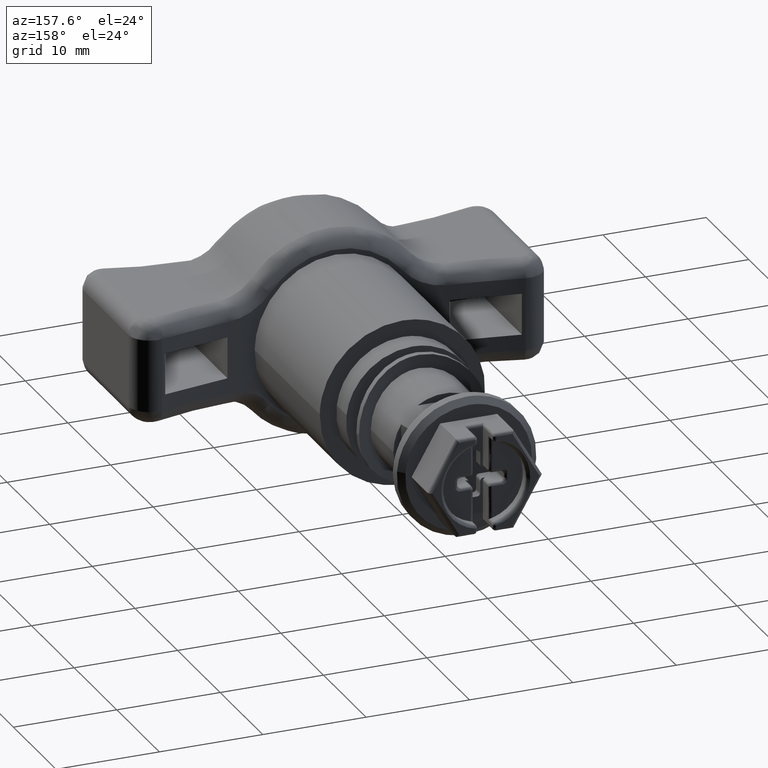
[diagram: clean part render]
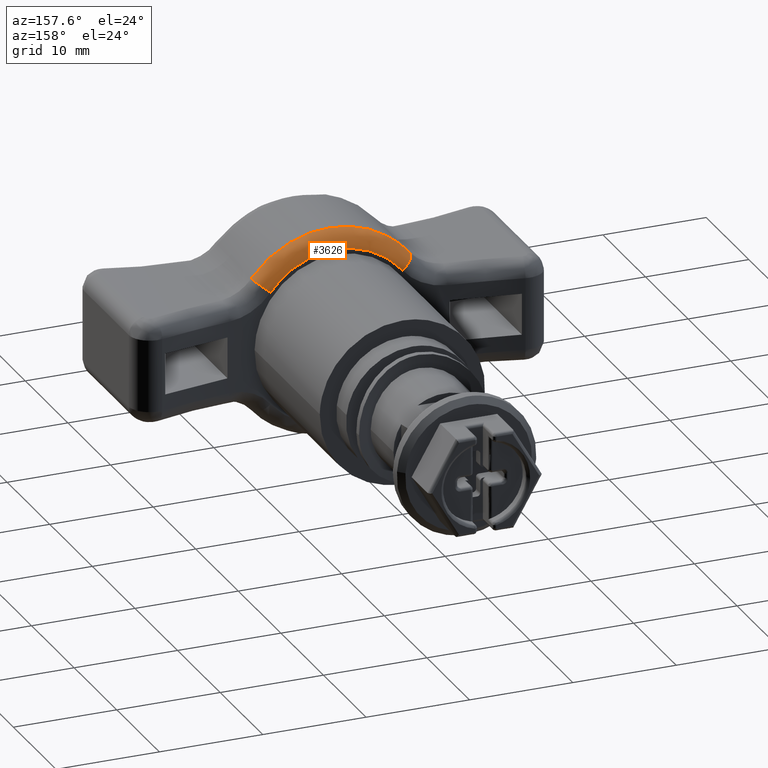
[diagram: same view with one face highlighted and labeled with its STEP entity id]
A machine part, auxiliary view. The second image highlights one B-rep face of the part: STEP entity #3626.
In plain terms, the highlighted face is a freeform B-spline surface patch.
Its self-contained STEP definition (entity closure, byte-faithful):
#2522=CARTESIAN_POINT('',(-6.391050002650430,-15.444973355953699,5.464285978425530));
#2523=VERTEX_POINT('',#2522);
#2545=CARTESIAN_POINT('',(6.391050002650680,-15.444973355953749,5.464285978425240));
#2546=VERTEX_POINT('',#2545);
#2547=CARTESIAN_POINT('',(-6.391050002650430,-15.444973355953699,5.464285978425530));
#2548=CARTESIAN_POINT('',(-6.293371294481954,-15.452801745247900,5.582855739566692));
#2549=CARTESIAN_POINT('',(-6.192551212520871,-15.460701468442400,5.698666154533239));
#2550=CARTESIAN_POINT('',(-5.984611256462836,-15.476573243039150,5.924758156369938));
#2551=CARTESIAN_POINT('',(-5.877787165092435,-15.484522070719050,6.034703189377846));
#2552=CARTESIAN_POINT('',(-5.550064845316550,-15.508214761255470,6.354191130201914));
#2553=CARTESIAN_POINT('',(-5.321464958936728,-15.523840790497360,6.553935483708539));
#2554=CARTESIAN_POINT('',(-4.844319461126574,-15.554218154549270,6.927353736672138));
#2555=CARTESIAN_POINT('',(-4.595774147143573,-15.568970563644010,7.101027939007040));
#2556=CARTESIAN_POINT('',(-4.207678117812562,-15.590041416442061,7.341601143357556));
#2557=CARTESIAN_POINT('',(-4.075760856174408,-15.596888633363530,7.418461896308532));
#2558=CARTESIAN_POINT('',(-3.873963189471058,-15.606842354847320,7.528638740507385));
#2559=CARTESIAN_POINT('',(-3.805935370490802,-15.610112318638000,7.564564914237447));
#2560=CARTESIAN_POINT('',(-3.669259629577774,-15.616504785085249,7.634329849871260));
#2561=CARTESIAN_POINT('',(-3.600587977800486,-15.619628777486779,7.668186084892299));
#2562=CARTESIAN_POINT('',(-3.255578311411126,-15.634874030256450,7.832391563014829));
#2563=CARTESIAN_POINT('',(-2.693023749169571,-15.656866660947889,8.062728614404454));
#2564=CARTESIAN_POINT('',(-2.109795327234112,-15.673392684278580,8.229598032148308));
#2565=CARTESIAN_POINT('',(-1.664494700294749,-15.683486502000960,8.330581952710306));
#2566=CARTESIAN_POINT('',(-1.514745077920083,-15.686467600944191,8.360206383309480));
#2567=CARTESIAN_POINT('',(-1.212556025245754,-15.691619352538259,8.411207230286403));
#2568=CARTESIAN_POINT('',(-1.059823314265323,-15.693790750493189,8.432590748546465));
#2569=CARTESIAN_POINT('',(-0.603313721844562,-15.698970489968950,8.483485306310657));
#2570=CARTESIAN_POINT('',(-0.299490858484405,-15.700680890282740,8.500141399010483));
#2571=CARTESIAN_POINT('',(0.307149426189610,-15.700651852811010,8.499857760532882));
#2572=CARTESIAN_POINT('',(0.609966787867557,-15.698912344743080,8.482916023127540));
#2573=CARTESIAN_POINT('',(1.063432710124424,-15.693740924812319,8.432100135845229));
#2574=CARTESIAN_POINT('',(1.214461055659724,-15.691590083340770,8.410918337501485));
#2575=CARTESIAN_POINT('',(1.516259375190935,-15.686438540521371,8.359917819930411));
#2576=CARTESIAN_POINT('',(1.667498245101296,-15.683425857339040,8.329978891333536));
#2577=CARTESIAN_POINT('',(2.115885746065098,-15.673239449129420,8.228057516104903));
#2578=CARTESIAN_POINT('',(2.408460575318321,-15.664917633605620,8.144006378914495));
#2579=CARTESIAN_POINT('',(2.981362303136257,-15.645607682458930,7.944817275486764));
#2580=CARTESIAN_POINT('',(3.261687912672660,-15.634618741827421,7.829676086979428));
#2581=CARTESIAN_POINT('',(3.672992325865016,-15.616421866114470,7.633627168148373));
#2582=CARTESIAN_POINT('',(3.808559781608929,-15.610070642638069,7.564379440234980));
#2583=CARTESIAN_POINT('',(4.009579428731478,-15.600151908203641,7.454579200501017));
#2584=CARTESIAN_POINT('',(4.076197167955492,-15.596780354799950,7.416990447931775));
#2585=CARTESIAN_POINT('',(4.208647195805992,-15.589912843204010,7.339814974892422));
#2586=CARTESIAN_POINT('',(4.274573353347610,-15.586411642221581,7.300167804702033));
#2587=CARTESIAN_POINT('',(4.600409187919292,-15.568710041352141,7.098016321114443));
#2588=CARTESIAN_POINT('',(4.849842462669388,-15.553883149136441,6.923355170303616));
#2589=CARTESIAN_POINT('',(5.327145426791865,-15.523462134842740,6.549158428926294));
#2590=CARTESIAN_POINT('',(5.555012192956063,-15.507866869172769,6.349619546492072));
#2591=CARTESIAN_POINT('',(5.989288152478241,-15.476451164877000,5.925748121795563));
#2592=CARTESIAN_POINT('',(6.195699057992713,-15.460629615874129,5.701417644896980));
#2593=CARTESIAN_POINT('',(6.391050002650680,-15.444973355953749,5.464285978425240));
#2594=B_SPLINE_CURVE_WITH_KNOTS('',3,(#2547,#2548,#2549,#2550,#2551,#2552,#2553,#2554,#2555,#2556,#2557,#2558,#2559,#2560,#2561,#2562,#2563,#2564,#2565,#2566,#2567,#2568,#2569,#2570,#2571,#2572,#2573,#2574,#2575,#2576,#2577,#2578,#2579,#2580,#2581,#2582,#2583,#2584,#2585,#2586,#2587,#2588,#2589,#2590,#2591,#2592,#2593),.UNSPECIFIED.,.F.,.U.,(4,2,2,2,2,2,2,2,1,2,2,2,2,2,2,2,2,2,2,2,2,2,2,4),(0.0,0.031250000000000,0.062500000000000,0.125000000000000,0.187500000000000,0.218750000000000,0.234375000000000,0.250000000000000,0.312500000000000,0.375000000000001,0.406250000000001,0.437500000000001,0.500000000000001,0.562500000000001,0.593750000000001,0.625000000000001,0.687500000000001,0.750000000000001,0.781250000000001,0.796875000000001,0.812500000000001,0.875000000000001,0.937500000000000,1.0),.UNSPECIFIED.);
#2595=EDGE_CURVE('',#2523,#2546,#2594,.T.);
#3353=CARTESIAN_POINT('',(-7.659861329335090,-16.940179110420651,6.428571685440500));
#3354=VERTEX_POINT('',#3353);
#3355=CARTESIAN_POINT('',(-7.659861329335094,-16.940179110420651,6.428571685440491));
#3356=CARTESIAN_POINT('',(-7.638414364983713,-16.292642419032585,6.454126471309774));
#3357=CARTESIAN_POINT('',(-7.261941579970955,-15.848995469551040,6.168010389246975));
#3358=CARTESIAN_POINT('',(-6.885468794958197,-15.405348520069493,5.881894307184175));
#3359=CARTESIAN_POINT('',(-6.391050002650429,-15.444973355953669,5.464285978425529));
#3367=(BOUNDED_CURVE()B_SPLINE_CURVE(2,(#3355,#3356,#3357,#3358,#3359),.UNSPECIFIED.,.F.,.U.)B_SPLINE_CURVE_WITH_KNOTS((3,2,3),(0.0,0.500000000000000,1.0),.UNSPECIFIED.)CURVE()GEOMETRIC_REPRESENTATION_ITEM()RATIONAL_B_SPLINE_CURVE((1.0,0.917913451856406,1.0,0.917913451856406,1.0))REPRESENTATION_ITEM(''));
#3368=EDGE_CURVE('',#3354,#2523,#3367,.T.);
#3396=CARTESIAN_POINT('',(6.429773516215127,-15.441874919499678,5.399956036047922));
#3397=CARTESIAN_POINT('',(6.414061733991347,-15.443132451744631,5.419030940929070));
#3398=CARTESIAN_POINT('',(6.398349916874171,-15.444389986782376,5.438105888172582));
#3399=CARTESIAN_POINT('',(5.989830415084018,-15.477086878763133,5.934069396815645));
#3400=CARTESIAN_POINT('',(5.553359666600803,-15.509125014938220,6.358706411157896));
#3401=CARTESIAN_POINT('',(4.835700776726581,-15.554742686121950,6.920198456051248));
#3402=CARTESIAN_POINT('',(4.585885907806836,-15.569545857714491,7.094681565956845));
#3403=CARTESIAN_POINT('',(4.064295478756223,-15.597786178751322,7.417407400406757));
#3404=CARTESIAN_POINT('',(3.795600744056370,-15.611044722660527,7.563614951987710));
#3405=CARTESIAN_POINT('',(2.974174008204904,-15.647240843102992,7.953922061769527));
#3406=CARTESIAN_POINT('',(2.403085624153171,-15.666782322377903,8.152271566503227));
#3407=CARTESIAN_POINT('',(1.510214337152697,-15.686964540039678,8.354461393258184));
#3408=CARTESIAN_POINT('',(1.208363520165653,-15.692105669904336,8.405200483570281));
#3409=CARTESIAN_POINT('',(0.606782353222884,-15.698930831119551,8.472360127530093));
#3410=CARTESIAN_POINT('',(0.305506866157571,-15.700652225710924,8.489149950196863));
#3411=CARTESIAN_POINT('',(-0.298004339540304,-15.700680524775995,8.489426774274358));
#3412=CARTESIAN_POINT('',(-0.600240326557486,-15.698987495392041,8.472915668686474));
#3413=CARTESIAN_POINT('',(-1.205697763812621,-15.692153206352051,8.405670247685357));
#3414=CARTESIAN_POINT('',(-1.508234221347116,-15.686994484946183,8.354754160703813));
#3415=CARTESIAN_POINT('',(-2.395109387573234,-15.666991944725963,8.154385911991920));
#3416=CARTESIAN_POINT('',(-2.966379190356510,-15.647554357584266,7.957233377244028));
#3417=CARTESIAN_POINT('',(-3.793017967171202,-15.611173338872931,7.565036106238099));
#3418=CARTESIAN_POINT('',(-4.063578171108953,-15.597816354033419,7.417716166205485));
#3419=CARTESIAN_POINT('',(-4.581299722971724,-15.569802740702990,7.097652873709981));
#3420=CARTESIAN_POINT('',(-4.830217023629731,-15.555074301225305,6.924158777715188));
#3421=CARTESIAN_POINT('',(-5.547606218777300,-15.509524057103798,6.363856739910319));
#3422=CARTESIAN_POINT('',(-5.988317873469839,-15.477207938009322,5.935905699249005));
#3423=CARTESIAN_POINT('',(-6.398410415005120,-15.444385144695278,5.438032440365229));
#3424=CARTESIAN_POINT('',(-6.414182729981824,-15.443122767592232,5.418884045643898));
#3425=CARTESIAN_POINT('',(-6.429955009793446,-15.441860393303699,5.399735693614758));
#3426=CARTESIAN_POINT('',(6.434006283810797,-15.441533175674980,5.403466394248363));
#3427=CARTESIAN_POINT('',(6.418283319227904,-15.442792441363384,5.422553499013037));
#3428=CARTESIAN_POINT('',(6.402560337158102,-15.444051708452369,5.441640625006205));
#3429=CARTESIAN_POINT('',(5.993756656551859,-15.476793145067198,5.937913362808497));
#3430=CARTESIAN_POINT('',(5.556987868062641,-15.508874235158366,6.362808082560252));
#3431=CARTESIAN_POINT('',(4.838847327193123,-15.554552398591552,6.924635825607974));
#3432=CARTESIAN_POINT('',(4.588865569557040,-15.569375133511620,7.099222445726841));
#3433=CARTESIAN_POINT('',(4.066928938192129,-15.597652629014361,7.422138453409061));
#3434=CARTESIAN_POINT('',(3.798056988777625,-15.610928533368298,7.568431372992877));
#3435=CARTESIAN_POINT('',(2.976090458373191,-15.647171983372795,7.958965499704060));
#3436=CARTESIAN_POINT('',(2.404631644116301,-15.666738678715872,8.157428025363849));
#3437=CARTESIAN_POINT('',(1.511184502888369,-15.686946919479514,8.359732815202897));
#3438=CARTESIAN_POINT('',(1.209139482392590,-15.692094661670046,8.410500624542067));
#3439=CARTESIAN_POINT('',(0.607171683292499,-15.698928603475412,8.477698274437502));
#3440=CARTESIAN_POINT('',(0.305702928126323,-15.700652207413366,8.494497565481151));
#3441=CARTESIAN_POINT('',(-0.298195587348790,-15.700680542847570,8.494774545927111));
#3442=CARTESIAN_POINT('',(-0.600625454370980,-15.698985340605152,8.478254129638390));
#3443=CARTESIAN_POINT('',(-1.206472009312753,-15.692142259324003,8.410970654867862));
#3444=CARTESIAN_POINT('',(-1.509203116336826,-15.686976902744536,8.360025747501537));
#3445=CARTESIAN_POINT('',(-2.396650259254690,-15.666948571377819,8.159543574357706));
#3446=CARTESIAN_POINT('',(-2.968290533616409,-15.647485906899842,7.962278732033252));
#3447=CARTESIAN_POINT('',(-3.795472504227563,-15.611057318361604,7.569853358929269));
#3448=CARTESIAN_POINT('',(-4.066211166589558,-15.597682842926206,7.422447393660730));
#3449=CARTESIAN_POINT('',(-4.584276338322131,-15.569632354666737,7.102195506816639));
#3450=CARTESIAN_POINT('',(-4.833359904258869,-15.554884452641694,6.928598503616544));
#3451=CARTESIAN_POINT('',(-5.551230520041569,-15.509273810041819,6.367961522073148));
#3452=CARTESIAN_POINT('',(-5.992243052998442,-15.476914370447552,5.939750823065372));
#3453=CARTESIAN_POINT('',(-6.402620879528568,-15.444046859578966,5.441567128746655));
#3454=CARTESIAN_POINT('',(-6.418404403832945,-15.442782743627557,5.422406506658930));
#3455=CARTESIAN_POINT('',(-6.434187910514252,-15.441518629087614,5.403245905964980));
#3456=CARTESIAN_POINT('',(7.664609882242406,-15.342177099321686,6.424042018968628));
#3457=CARTESIAN_POINT('',(7.645437392227218,-15.343956316822112,6.446510438857483));
#3458=CARTESIAN_POINT('',(7.626271058597384,-15.345734963006644,6.468971644020913));
#3459=CARTESIAN_POINT('',(7.130097591017242,-15.391780130643713,7.050441958960071));
#3460=CARTESIAN_POINT('',(6.602806811310390,-15.436587663668019,7.545103414470729));
#3461=CARTESIAN_POINT('',(5.740643888944427,-15.500016282781003,8.196379168683492));
#3462=CARTESIAN_POINT('',(5.441254072349725,-15.520536251824245,8.398226840518595));
#3463=CARTESIAN_POINT('',(4.817639245029302,-15.559582111333818,8.770801813321864));
#3464=CARTESIAN_POINT('',(4.497101927362836,-15.577861170027859,8.939180263208870));
#3465=CARTESIAN_POINT('',(3.519085445261379,-15.627661698725012,9.387941614215063));
#3466=CARTESIAN_POINT('',(2.841627393038753,-15.654402424833092,9.614945169595003));
#3467=CARTESIAN_POINT('',(1.784737783236081,-15.681978529170282,9.846092013484803));
#3468=CARTESIAN_POINT('',(1.427797687450812,-15.688992654035209,9.904026045258235));
#3469=CARTESIAN_POINT('',(0.716790221733565,-15.698301395060822,9.980689971306083));
#3470=CARTESIAN_POINT('',(0.360894016848723,-15.700647056680937,9.999841572209657));
#3471=CARTESIAN_POINT('',(-0.352031314311365,-15.700685629944363,10.000157414547944));
#3472=CARTESIAN_POINT('',(-0.709060075016701,-15.698378649810824,9.981323936262239));
#3473=CARTESIAN_POINT('',(-1.424645200742465,-15.689057516765800,9.904562481602071));
#3474=CARTESIAN_POINT('',(-1.782397098476631,-15.682019346211636,9.846426033147102));
#3475=CARTESIAN_POINT('',(-2.832179677354926,-15.654689037180816,9.617363661494959));
#3476=CARTESIAN_POINT('',(-3.509817740616688,-15.628092264359001,9.391742996594319));
#3477=CARTESIAN_POINT('',(-4.494020336639495,-15.578038514877454,8.940817148975809));
#3478=CARTESIAN_POINT('',(-4.816786425445370,-15.559623478760168,8.771155470861142));
#3479=CARTESIAN_POINT('',(-5.435766094949750,-15.520891772674934,8.401659865860047));
#3480=CARTESIAN_POINT('',(-5.734067312187802,-15.500476396523801,8.200964361692991));
#3481=CARTESIAN_POINT('',(-6.595872516339509,-15.437144433551884,7.551093806141344));
#3482=CARTESIAN_POINT('',(-7.128258713354351,-15.391950779584556,7.052596959037008));
#3483=CARTESIAN_POINT('',(-7.626345234259779,-15.345728079460976,6.468884716782246));
#3484=CARTESIAN_POINT('',(-7.645585791599477,-15.343942545272041,6.446336528072842));
#3485=CARTESIAN_POINT('',(-7.664832553406564,-15.342156435305169,6.423781068290199));
#3486=CARTESIAN_POINT('',(7.716612665669581,-16.941775254176139,6.360946684436071));
#3487=CARTESIAN_POINT('',(7.697755718304816,-16.943059101549629,6.383416663098598));
#3488=CARTESIAN_POINT('',(7.678898750232133,-16.944342950332981,6.405886666436720));
#3489=CARTESIAN_POINT('',(7.188610301215092,-16.977723514288819,6.990115427051560));
#3490=CARTESIAN_POINT('',(6.664788460699507,-17.010430135551982,7.490308825652189));
#3491=CARTESIAN_POINT('',(5.803500918646843,-17.056999221031543,8.151712529960248));
#3492=CARTESIAN_POINT('',(5.503688683086537,-17.072111043700502,8.357243103447255));
#3493=CARTESIAN_POINT('',(4.877708532916928,-17.100939998503986,8.737394399650016));
#3494=CARTESIAN_POINT('',(4.555238129255639,-17.114474785914798,8.909617580528384));
#3495=CARTESIAN_POINT('',(3.569411671913208,-17.151424960670493,9.369375176843670));
#3496=CARTESIAN_POINT('',(2.884028791495294,-17.171373132338811,9.603016867647593));
#3497=CARTESIAN_POINT('',(1.812462672128541,-17.191975344685396,9.841182600755909));
#3498=CARTESIAN_POINT('',(1.450200735140404,-17.197223441366944,9.900949726523395));
#3499=CARTESIAN_POINT('',(0.728221330355375,-17.204190609237521,9.980059186216836));
#3500=CARTESIAN_POINT('',(0.366649880439270,-17.205947813484038,9.999836421630828));
#3501=CARTESIAN_POINT('',(-0.357645827534893,-17.205976701288076,10.000162501494009));
#3502=CARTESIAN_POINT('',(-0.720370005047721,-17.204248452445562,9.980713575438111));
#3503=CARTESIAN_POINT('',(-1.447001462558597,-17.197271966925111,9.901503076770162));
#3504=CARTESIAN_POINT('',(-1.810086269362513,-17.192005912460132,9.841527459207368));
#3505=CARTESIAN_POINT('',(-2.874456244330126,-17.171587117007949,9.605507419559650));
#3506=CARTESIAN_POINT('',(-3.560056794790949,-17.151745005274805,9.373275701317969));
#3507=CARTESIAN_POINT('',(-4.552138435547019,-17.114606082267354,8.911291613736058));
#3508=CARTESIAN_POINT('',(-4.876847677471722,-17.100970801479146,8.737758098813062));
#3509=CARTESIAN_POINT('',(-5.498184642616473,-17.072373281178990,8.360743117821098));
#3510=CARTESIAN_POINT('',(-5.796919660504223,-17.057337751290763,8.156377552700192));
#3511=CARTESIAN_POINT('',(-6.657883530927361,-17.010837504604311,7.496375618462272));
#3512=CARTESIAN_POINT('',(-7.186797888827092,-16.977846910312270,6.992275102352481));
#3513=CARTESIAN_POINT('',(-7.678971244631301,-16.944338014634685,6.405800281922700));
#3514=CARTESIAN_POINT('',(-7.697900706942340,-16.943049230164064,6.383243894262178));
#3515=CARTESIAN_POINT('',(-7.716830148384358,-16.941760447114280,6.360687531469227));
#3516=CARTESIAN_POINT('',(7.716789291926390,-16.947208252486387,6.360732382584786));
#3517=CARTESIAN_POINT('',(7.697933445028869,-16.948491295594508,6.383202331889734));
#3518=CARTESIAN_POINT('',(7.679077556782959,-16.949774341516186,6.405672330468326));
#3519=CARTESIAN_POINT('',(7.188809938121159,-16.983134523781224,6.989909601648102));
#3520=CARTESIAN_POINT('',(6.665000794986136,-17.015821742936215,7.490121112513822));
#3521=CARTESIAN_POINT('',(5.803717490429685,-17.062363753405812,8.151558632558045));
#3522=CARTESIAN_POINT('',(5.503904197644062,-17.077466838359726,8.357101633966527));
#3523=CARTESIAN_POINT('',(4.877916611999241,-17.106279238337795,8.737278676886792));
#3524=CARTESIAN_POINT('',(4.555439842686897,-17.119806327964099,8.909515007777387));
#3525=CARTESIAN_POINT('',(3.569587067043670,-17.156735524841622,9.369310469772984));
#3526=CARTESIAN_POINT('',(2.884176920268198,-17.176672651166303,9.602975196268950));
#3527=CARTESIAN_POINT('',(1.812559766730109,-17.197263464675363,9.841165407631177));
#3528=CARTESIAN_POINT('',(1.450279241193863,-17.202508670790202,9.900938946309625));
#3529=CARTESIAN_POINT('',(0.728261421042512,-17.209471998413957,9.980056973954790));
#3530=CARTESIAN_POINT('',(0.366670071358485,-17.211228238479620,9.999836403563181));
#3531=CARTESIAN_POINT('',(-0.357665522680434,-17.211257110390523,10.000162519338502));
#3532=CARTESIAN_POINT('',(-0.720409671014672,-17.209529809771301,9.980711434792488));
#3533=CARTESIAN_POINT('',(-1.447079805113840,-17.202557169561061,9.901492355765285));
#3534=CARTESIAN_POINT('',(-1.810183239228951,-17.197294015749968,9.841510303978605));
#3535=CARTESIAN_POINT('',(-2.874603940778040,-17.176886517462290,9.605465998863874));
#3536=CARTESIAN_POINT('',(-3.560231892842326,-17.157055388407901,9.373211337299372));
#3537=CARTESIAN_POINT('',(-4.552340089372692,-17.119937549300762,8.911189168245782));
#3538=CARTESIAN_POINT('',(-4.877055729491223,-17.106310024562738,8.737642410403868));
#3539=CARTESIAN_POINT('',(-5.498400108625496,-17.077728925313739,8.360601875053812));
#3540=CARTESIAN_POINT('',(-5.797136225144892,-17.062702087372141,8.156223923973068));
#3541=CARTESIAN_POINT('',(-6.658095976533351,-17.016228872256416,7.496188157595561));
#3542=CARTESIAN_POINT('',(-7.186997619180120,-16.983257843956181,6.992069289652980));
#3543=CARTESIAN_POINT('',(-7.679150045356603,-16.949769408993824,6.405585947934089));
#3544=CARTESIAN_POINT('',(-7.698078421854762,-16.948481430571707,6.383029567204243));
#3545=CARTESIAN_POINT('',(-7.717006756682845,-16.947193454985037,6.360473236131377));
#3553=(BOUNDED_SURFACE()B_SPLINE_SURFACE(3,2,((#3396,#3426,#3456,#3486,#3516),(#3397,#3427,#3457,#3487,#3517),(#3398,#3428,#3458,#3488,#3518),(#3399,#3429,#3459,#3489,#3519),(#3400,#3430,#3460,#3490,#3520),(#3401,#3431,#3461,#3491,#3521),(#3402,#3432,#3462,#3492,#3522),(#3403,#3433,#3463,#3493,#3523),(#3404,#3434,#3464,#3494,#3524),(#3405,#3435,#3465,#3495,#3525),(#3406,#3436,#3466,#3496,#3526),(#3407,#3437,#3467,#3497,#3527),(#3408,#3438,#3468,#3498,#3528),(#3409,#3439,#3469,#3499,#3529),(#3410,#3440,#3470,#3500,#3530),(#3411,#3441,#3471,#3501,#3531),(#3412,#3442,#3472,#3502,#3532),(#3413,#3443,#3473,#3503,#3533),(#3414,#3444,#3474,#3504,#3534),(#3415,#3445,#3475,#3505,#3535),(#3416,#3446,#3476,#3506,#3536),(#3417,#3447,#3477,#3507,#3537),(#3418,#3448,#3478,#3508,#3538),(#3419,#3449,#3479,#3509,#3539),(#3420,#3450,#3480,#3510,#3540),(#3421,#3451,#3481,#3511,#3541),(#3422,#3452,#3482,#3512,#3542),(#3423,#3453,#3483,#3513,#3543),(#3424,#3454,#3484,#3514,#3544),(#3425,#3455,#3485,#3515,#3545)),.UNSPECIFIED.,.F.,.F.,.U.)B_SPLINE_SURFACE_WITH_KNOTS((4,2,2,2,2,2,2,2,2,2,2,2,2,2,4),(3,1,1,3),(0.0,0.088425074599593,2.299051989000843,3.404365446201469,4.509678903402094,6.720305817803346,7.825619275003970,8.930932732204596,10.036246189405221,11.141559646605851,13.352186561007100,14.457500018207719,15.562813475408349,17.773440389809601,17.861865464409199),(0.0,0.013143171030673,2.608396099515526,2.621373194249369),.UNSPECIFIED.)GEOMETRIC_REPRESENTATION_ITEM()RATIONAL_B_SPLINE_SURFACE(((1.003192539718693,1.001596269859346,0.684800264909224,1.001576099492061,1.003152198984122),(1.003191425754729,1.001595712877365,0.684910246672112,1.001575549548069,1.003151099096138),(1.003190311790765,1.001595155895382,0.685020228435000,1.001574999604077,1.003149999208154),(1.003161348727079,1.001580674363539,0.687879754331539,1.001560701059975,1.003121402119950),(1.003133147591134,1.001566573795567,0.690664055033296,1.001546778665908,1.003093557331816),(1.003093184525141,1.001546592262571,0.694609612152132,1.001527049618328,1.003054099236655),(1.003080250855975,1.001540125427987,0.695886554478371,1.001520664498267,1.003041328996533),(1.003055633072002,1.001527816536001,0.698317070515859,1.001508511140679,1.003017022281358),(1.003044104602464,1.001522052301232,0.699455277355730,1.001502819742424,1.003005639484848),(1.003012689141216,1.001506344570608,0.702556928685297,1.001487310493713,1.002974620987427),(1.002995811137740,1.001497905568870,0.704223295494604,1.001478978126680,1.002957956253359),(1.002978403869359,1.001489201934679,0.705941916675804,1.001470384471073,1.002940768942146),(1.002973975668856,1.001486987834428,0.706379113311811,1.001468198348055,1.002936396696111),(1.002968098671211,1.001484049335605,0.706959349820729,1.001465296979922,1.002930593959845),(1.002966617647037,1.001483308823518,0.707105571471343,1.001464565824900,1.002929131649800),(1.002966593292914,1.001483296646457,0.707107975956116,1.001464553801707,1.002929107603414),(1.002968049895548,1.001484024947774,0.706964165446269,1.001465272900254,1.002930545800508),(1.002973934719784,1.001486967359892,0.706383156217358,1.001468178132235,1.002936356264469),(1.002978378098416,1.001489189049208,0.705944461043332,1.001470371748421,1.002940743496843),(1.002995630225927,1.001497815112964,0.704241156934201,1.001478888813769,1.002957777627537),(1.003012417477584,1.001506208738792,0.702583750060218,1.001487176378260,1.002974352756520),(1.003043992754293,1.001521996377146,0.699466320135848,1.001502764524991,1.003005529049983),(1.003055606964717,1.001527803482359,0.698319648090456,1.001508498251981,1.003016996503963),(1.003080026731346,1.001540013365673,0.695908682323206,1.001520553851965,1.003041107703930),(1.003092894551836,1.001546447275918,0.694638241242791,1.001526906463717,1.003053812927435),(1.003132796955953,1.001566398477976,0.690698673276393,1.001546605563620,1.003093211127240),(1.003161239547095,1.001580619773548,0.687890533681163,1.001560647159779,1.003121294319558),(1.003190316157964,1.001595158078982,0.685019797261024,1.001575001760085,1.003150003520169),(1.003191434489127,1.001595717244564,0.684909384324161,1.001575553860085,1.003151107720169),(1.003192552820291,1.001596276410145,0.684798971387298,1.001576105960085,1.003152211920169)))REPRESENTATION_ITEM('')SURFACE());
#3554=CARTESIAN_POINT('',(7.659861329335380,-16.940179110420651,6.428571685440150));
#3555=VERTEX_POINT('',#3554);
#3556=CARTESIAN_POINT('',(7.659861329335386,-16.940179110420701,6.428571685440149));
#3557=CARTESIAN_POINT('',(7.638414364984008,-16.292642419032646,6.454126471309431));
#3558=CARTESIAN_POINT('',(7.261941579971238,-15.848995469551090,6.168010389246645));
#3559=CARTESIAN_POINT('',(6.885468794958469,-15.405348520069541,5.881894307183861));
#3560=CARTESIAN_POINT('',(6.391050002650681,-15.444973355953730,5.464285978425235));
#3568=(BOUNDED_CURVE()B_SPLINE_CURVE(2,(#3556,#3557,#3558,#3559,#3560),.UNSPECIFIED.,.F.,.U.)B_SPLINE_CURVE_WITH_KNOTS((3,2,3),(0.0,0.500000000000000,1.0),.UNSPECIFIED.)CURVE()GEOMETRIC_REPRESENTATION_ITEM()RATIONAL_B_SPLINE_CURVE((1.0,0.917913451856406,1.0,0.917913451856406,1.0))REPRESENTATION_ITEM(''));
#3569=EDGE_CURVE('',#3555,#2546,#3568,.T.);
#3570=ORIENTED_EDGE('',*,*,#3569,.T.);
#3571=ORIENTED_EDGE('',*,*,#2595,.F.);
#3572=ORIENTED_EDGE('',*,*,#3368,.F.);
#3573=CARTESIAN_POINT('',(7.659861329335380,-16.940179110420701,6.428571685440150));
#3574=CARTESIAN_POINT('',(7.424078147521787,-16.956241281986969,6.709515348333743));
#3575=CARTESIAN_POINT('',(7.175094657110359,-16.972457451633360,6.974899250290078));
#3576=CARTESIAN_POINT('',(6.651684397649628,-17.004619621548368,7.475713849810949));
#3577=CARTESIAN_POINT('',(6.377254645607283,-17.020566788743860,7.711140955596147));
#3578=CARTESIAN_POINT('',(5.802965743234174,-17.051634812107160,8.152095450547831));
#3579=CARTESIAN_POINT('',(5.503109145833192,-17.066756822882631,8.357625769870863));
#3580=CARTESIAN_POINT('',(5.111828606136068,-17.084786174397731,8.595207945769619));
#3581=CARTESIAN_POINT('',(5.032710391380468,-17.088349612383251,8.641770726556237));
#3582=CARTESIAN_POINT('',(4.873799364318733,-17.095336845311781,8.732379683124158));
#3583=CARTESIAN_POINT('',(4.634063532935146,-17.105625033844010,8.864739612249007));
#3584=CARTESIAN_POINT('',(4.390268690499310,-17.115307325121812,8.986568667156099));
#3585=CARTESIAN_POINT('',(3.897349325097551,-17.133791665335000,9.216406136713607));
#3586=CARTESIAN_POINT('',(3.561645594791658,-17.144940904438979,9.351243791923785));
#3587=CARTESIAN_POINT('',(2.876109658492426,-17.164514012282520,9.584313905085672));
#3588=CARTESIAN_POINT('',(2.526278586196816,-17.172938662812800,9.682549254331470));
#3589=CARTESIAN_POINT('',(2.079874812581866,-17.181525039794479,9.781742937335434));
#3590=CARTESIAN_POINT('',(1.990008940329553,-17.183147141272041,9.800422358015657));
#3591=CARTESIAN_POINT('',(1.809996985172897,-17.186179783244611,9.835259269167729));
#3592=CARTESIAN_POINT('',(1.539866843545473,-17.190407272287668,9.883683502160706));
#3593=CARTESIAN_POINT('',(1.269404446901090,-17.193668018920860,9.920764892060269));
#3594=CARTESIAN_POINT('',(0.728044340578130,-17.198894421485090,9.980069023462370));
#3595=CARTESIAN_POINT('',(0.366558436727162,-17.200651936108681,9.999836605426101));
#3596=CARTESIAN_POINT('',(-0.357562262445891,-17.200680810913489,10.000162321244099));
#3597=CARTESIAN_POINT('',(-0.720196992957606,-17.198952238646910,9.980722678231485));
#3598=CARTESIAN_POINT('',(-1.265034427851843,-17.193718976067579,9.921344276007899));
#3599=CARTESIAN_POINT('',(-1.447303003222949,-17.191525543226842,9.896401337169859));
#3600=CARTESIAN_POINT('',(-1.808135571812602,-17.186318057859179,9.836874054465758));
#3601=CARTESIAN_POINT('',(-1.987010955218841,-17.183303611563939,9.802285511072325));
#3602=CARTESIAN_POINT('',(-2.519104616938640,-17.173091592843651,9.684324371756668));
#3603=CARTESIAN_POINT('',(-2.867803482197935,-17.164725503525410,9.586797485774573));
#3604=CARTESIAN_POINT('',(-3.553290529760292,-17.145204501055751,9.354416564215860));
#3605=CARTESIAN_POINT('',(-3.890079129480928,-17.134048922459758,9.219563900418880));
#3606=CARTESIAN_POINT('',(-4.303448042472874,-17.118566769209330,9.027107010871706));
#3607=CARTESIAN_POINT('',(-4.385739903874481,-17.115393488688440,8.987417673415349));
#3608=CARTESIAN_POINT('',(-4.549550989100395,-17.108898563121141,8.905614899513179));
#3609=CARTESIAN_POINT('',(-4.631128026967961,-17.105574229425741,8.863466168419151));
#3610=CARTESIAN_POINT('',(-4.873211757498329,-17.095450051036320,8.734145404767736));
#3611=CARTESIAN_POINT('',(-5.031549489013058,-17.088480810072550,8.643872728875280));
#3612=CARTESIAN_POINT('',(-5.497600956590017,-17.067019393664399,8.361127871116139));
#3613=CARTESIAN_POINT('',(-5.796379042449792,-17.051973801705788,8.156763657285254));
#3614=CARTESIAN_POINT('',(-6.370451351347563,-17.020951774643208,7.716744970819930));
#3615=CARTESIAN_POINT('',(-6.645746022906095,-17.004974241723168,7.481091174000814));
#3616=CARTESIAN_POINT('',(-7.040712012452241,-16.980719920925150,7.103629200697318));
#3617=CARTESIAN_POINT('',(-7.169502353586181,-16.972578313087059,6.973654858447630));
#3618=CARTESIAN_POINT('',(-7.420319234988944,-16.956310934365629,6.706153035360967));
#3619=CARTESIAN_POINT('',(-7.541969844038789,-16.948210189009369,6.569043391048792));
#3620=CARTESIAN_POINT('',(-7.659861329335091,-16.940179110420701,6.428571685440498));
#3621=B_SPLINE_CURVE_WITH_KNOTS('',3,(#3573,#3574,#3575,#3576,#3577,#3578,#3579,#3580,#3581,#3582,#3583,#3584,#3585,#3586,#3587,#3588,#3589,#3590,#3591,#3592,#3593,#3594,#3595,#3596,#3597,#3598,#3599,#3600,#3601,#3602,#3603,#3604,#3605,#3606,#3607,#3608,#3609,#3610,#3611,#3612,#3613,#3614,#3615,#3616,#3617,#3618,#3619,#3620),.UNSPECIFIED.,.F.,.U.,(4,2,2,2,2,1,2,2,2,2,1,2,2,2,2,2,2,2,2,2,2,2,2,2,4),(0.0,0.062500000000000,0.125000000000000,0.187500000000000,0.203124999999999,0.218749999999999,0.249999999999999,0.312499999999999,0.374999999999999,0.390624999999999,0.406249999999999,0.437499999999999,0.499999999999999,0.562499999999999,0.593749999999999,0.624999999999999,0.687499999999999,0.749999999999999,0.765624999999999,0.781249999999999,0.812499999999999,0.875000000000000,0.937500000000000,0.968750000000000,1.0),.UNSPECIFIED.);
#3622=EDGE_CURVE('',#3555,#3354,#3621,.T.);
#3623=ORIENTED_EDGE('',*,*,#3622,.F.);
#3624=EDGE_LOOP('',(#3570,#3571,#3572,#3623));
#3625=FACE_OUTER_BOUND('',#3624,.T.);
#3626=ADVANCED_FACE('',(#3625),#3553,.T.);